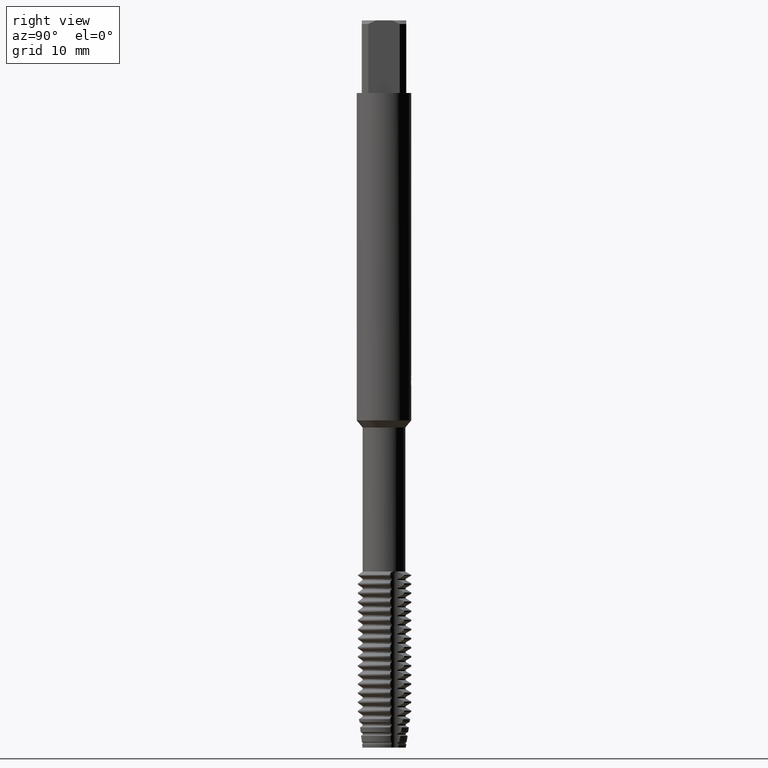
[diagram: clean part render]
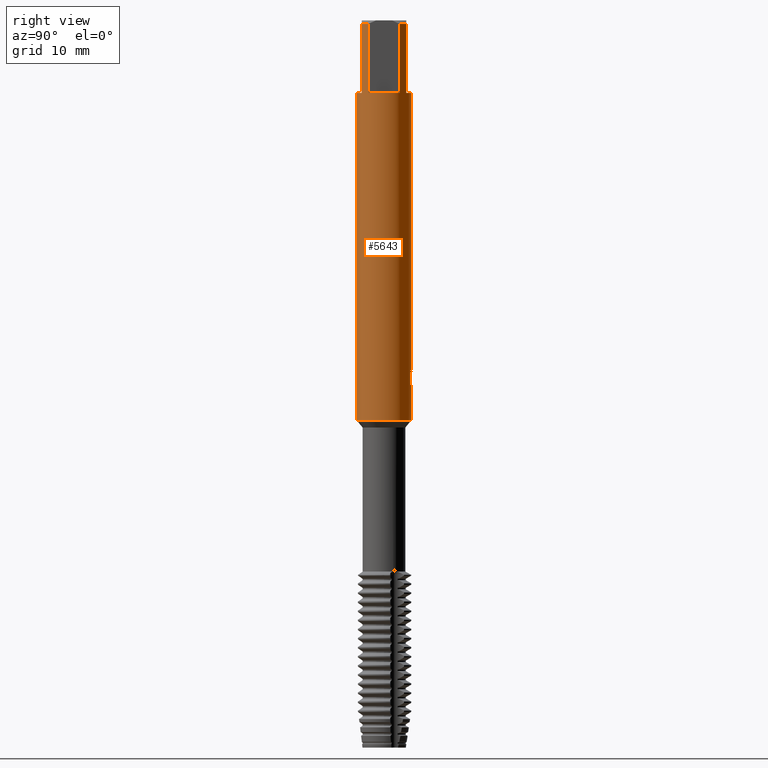
[diagram: same view with one face highlighted and labeled with its STEP entity id]
A machine part, right view. The second image highlights one B-rep face of the part: STEP entity #5643.
In plain terms, the highlighted cylindrical surface (edge-blend (fillet) strip) has radius 3 mm, axis along (-0, -0, 1).
Its self-contained STEP definition (entity closure, byte-faithful):
#2413=EDGE_CURVE('',#4711,#2663,#7181,.T.);
#2647=EDGE_CURVE('',#2835,#6529,#7437,.T.);
#2663=VERTEX_POINT('',#7453);
#2731=EDGE_CURVE('',#3915,#5025,#7527,.T.);
#2835=VERTEX_POINT('',#7644);
#2893=EDGE_CURVE('',#5283,#3915,#7709,.T.);
#2947=EDGE_CURVE('',#4445,#5825,#7770,.T.);
#3297=VERTEX_POINT('',#8155);
#3629=EDGE_CURVE('',#4507,#4875,#8514,.T.);
#3643=EDGE_CURVE('',#4875,#4445,#8528,.T.);
#3915=VERTEX_POINT('',#8822);
#4161=EDGE_CURVE('',#3297,#5447,#9097,.T.);
#4303=EDGE_CURVE('',#6037,#5497,#9253,.T.);
#4403=EDGE_CURVE('',#5447,#5661,#9361,.T.);
#4445=VERTEX_POINT('',#9405);
#4507=VERTEX_POINT('',#9475);
#4711=VERTEX_POINT('',#9699);
#4723=EDGE_CURVE('',#6819,#6037,#9712,.T.);
#4875=VERTEX_POINT('',#9881);
#5021=EDGE_CURVE('',#5661,#5497,#10040,.T.);
#5025=VERTEX_POINT('',#10044);
#5049=VERTEX_POINT('',#10070);
#5283=VERTEX_POINT('',#10326);
#5375=EDGE_CURVE('',#5025,#6529,#10423,.T.);
#5447=VERTEX_POINT('',#10498);
#5497=VERTEX_POINT('',#10552);
#5629=EDGE_CURVE('',#4711,#6819,#10697,.T.);
#5643=ADVANCED_FACE('',(#10712),#10713,.T.);
#5661=VERTEX_POINT('',#10731);
#5725=EDGE_CURVE('',#5049,#6765,#10804,.T.);
#5779=EDGE_CURVE('',#5825,#3297,#10863,.T.);
#5795=EDGE_CURVE('',#6765,#5283,#10882,.T.);
#5809=EDGE_CURVE('',#2835,#5827,#10899,.T.);
#5825=VERTEX_POINT('',#10919);
#5827=VERTEX_POINT('',#10921);
#6037=VERTEX_POINT('',#11148);
#6289=EDGE_CURVE('',#5827,#4507,#11421,.T.);
#6529=VERTEX_POINT('',#11671);
#6765=VERTEX_POINT('',#11928);
#6819=VERTEX_POINT('',#11986);
#6911=EDGE_CURVE('',#2663,#5049,#12085,.T.);
#7181=B_SPLINE_CURVE_WITH_KNOTS('',3,(#12372,#12373,#12374,#12375,#12376,#12377,#12378,#12379,#12380,#12381),.UNSPECIFIED.,.F.,.F.,(4,2,2,2,4),(3.33952438176389,3.71068639626914,4.08193290438485,4.45317941250055,4.82387408804259),.UNSPECIFIED.);
#7437=LINE('',#12804,#12805);
#7453=CARTESIAN_POINT('',(0.174061876221498,2.99494615364722,-40.2998997394137));
#7527=B_SPLINE_CURVE_WITH_KNOTS('',3,(#13006,#13007,#13008,#13009,#13010,#13011),.UNSPECIFIED.,.F.,.F.,(4,2,4),(0.37107796654128,0.74215593308256,1.11285058772105),.UNSPECIFIED.);
#7644=CARTESIAN_POINT('',(-3.67381906146713E-016,3.0,-8.0));
#7709=LINE('',#13316,#13317);
#7770=CIRCLE('',#13410,3.0);
#8155=CARTESIAN_POINT('',(2.45,-1.73132896931808,-0.399999999999999));
#8514=CIRCLE('',#14707,3.0);
#8528=LINE('',#14730,#14731);
#8822=CARTESIAN_POINT('',(0.802326039087946,2.89072186953388,-38.8090290618892));
#9097=CIRCLE('',#15777,3.0);
#9253=LINE('',#16078,#16079);
#9361=LINE('',#16304,#16305);
#9405=CARTESIAN_POINT('',(2.45,1.73132896931808,-8.0));
#9475=CARTESIAN_POINT('',(1.73132896931808,2.45,-0.399999999999999));
#9699=CARTESIAN_POINT('',(1.02911540261998E-015,2.99999999999999,-40.318615216062));
#9712=CIRCLE('',#16884,3.0);
#9881=CARTESIAN_POINT('',(2.45,1.73132896931808,-0.399999999999999));
#10040=CIRCLE('',#17443,3.0);
#10044=CARTESIAN_POINT('',(0.479659035830618,2.96140628913799,-38.5000001661238));
#10070=CARTESIAN_POINT('',(0.524136469055374,2.95385865636902,-39.2919358957655));
#10326=CARTESIAN_POINT('',(0.802326039087947,2.89072186953388,-39.8740994201954));
#10423=B_SPLINE_CURVE_WITH_KNOTS('',3,(#18039,#18040,#18041,#18042,#18043,#18044,#18045,#18046,#18047,#18048,#18049,#18050,#18051,#18052,#18053,#18054,#18055,#18056,#18057,#18058,#18059,#18060,#18061,#18062,#18063,#18064,#18065),.UNSPECIFIED.,.F.,.F.,(4,2,3,2,2,2,2,2,2,2,2,2,4),(-0.325491662881047,-0.162745831440524,0.0,0.162745831440523,0.325491662881047,0.48857928896217,0.651666915043293,0.814181075788761,0.97669523653423,1.13937860219068,1.30206196784712,1.46474533350356,1.62742869916001),.UNSPECIFIED.);
#10498=CARTESIAN_POINT('',(1.73132896931808,-2.45,-0.399999999999999));
#10552=CARTESIAN_POINT('',(3.67381906146713E-016,-3.0,-8.0));
#10697=LINE('',#18573,#18574);
#10712=FACE_OUTER_BOUND('',#18608,.T.);
#10713=CYLINDRICAL_SURFACE('',#18609,3.0);
#10731=CARTESIAN_POINT('',(1.73132896931808,-2.45,-8.0));
#10804=LINE('',#18756,#18757);
#10863=LINE('',#18851,#18852);
#10882=B_SPLINE_CURVE_WITH_KNOTS('',3,(#18882,#18883,#18884,#18885,#18886,#18887),.UNSPECIFIED.,.F.,.F.,(4,2,4),(4.82387363034724,5.19456827247255,5.56564622611886),.UNSPECIFIED.);
#10899=CIRCLE('',#18911,3.0);
#10919=CARTESIAN_POINT('',(2.45,-1.73132896931808,-8.0));
#10921=CARTESIAN_POINT('',(1.73132896931808,2.45,-8.0));
#11148=CARTESIAN_POINT('',(3.67381906146713E-016,-3.0,-44.0));
#11421=LINE('',#19862,#19863);
#11671=CARTESIAN_POINT('',(-1.1292194788514E-014,3.0,-39.1139612870646));
#11928=CARTESIAN_POINT('',(0.524136469055373,2.95385865636902,-40.1552411074919));
#11986=CARTESIAN_POINT('',(0.0,3.0,-44.0));
#12085=ELLIPSE('',#21044,9.14398372010932,3.0);
#12372=CARTESIAN_POINT('',(-0.919321134391312,2.85566956279284,-39.7167514643836));
#12373=CARTESIAN_POINT('',(-0.869340333826626,2.87175979045446,-39.8369526818478));
#12374=CARTESIAN_POINT('',(-0.7943367658771,2.89428729416518,-39.946180348735));
#12375=CARTESIAN_POINT('',(-0.62190649826245,2.93617195165647,-40.1186756687858));
#12376=CARTESIAN_POINT('',(-0.512637169305662,2.95836427575571,-40.1937653794614));
#12377=CARTESIAN_POINT('',(-0.272101743389447,2.99009643596645,-40.2938340938058));
#12378=CARTESIAN_POINT('',(-0.140764146727553,2.99924977776393,-40.3187634001052));
#12379=CARTESIAN_POINT('',(0.106545602280532,3.0006526485303,-40.3187634001052));
#12380=CARTESIAN_POINT('',(0.237797441372153,2.9930118737714,-40.2939004779081));
#12381=CARTESIAN_POINT('',(0.358042092904169,2.97855768111158,-40.2439214764374));
#12804=CARTESIAN_POINT('',(-3.67381906146713E-016,3.0,-22.2));
#12805=VECTOR('',#21784,1.0);
#13006=CARTESIAN_POINT('',(0.885267806757017,2.86640906193091,-38.9663327006887));
#13007=CARTESIAN_POINT('',(0.835257364243698,2.88185438127597,-38.8460769466886));
#13008=CARTESIAN_POINT('',(0.760180789012212,2.90344206972957,-38.7367632829805));
#13009=CARTESIAN_POINT('',(0.587589839319659,2.9432248732203,-38.5642350710499));
#13010=CARTESIAN_POINT('',(0.478286561023013,2.96410351776529,-38.4891862553258));
#13011=CARTESIAN_POINT('',(0.358041915481556,2.97855770243893,-38.4392072565724));
#13316=CARTESIAN_POINT('',(0.802326039087947,2.89072186953388,-39.3415642410423));
#13317=VECTOR('',#22087,1.0);
#13410=AXIS2_PLACEMENT_3D('',#22164,#22165,#22166);
#14707=AXIS2_PLACEMENT_3D('',#22951,#22952,#22953);
#14730=CARTESIAN_POINT('',(2.45,1.73132896931808,-4.2));
#14731=VECTOR('',#22954,1.0);
#15777=AXIS2_PLACEMENT_3D('',#23589,#23590,#23591);
#16078=CARTESIAN_POINT('',(3.67381906146713E-016,-3.0,-22.2));
#16079=VECTOR('',#23769,1.0);
#16304=CARTESIAN_POINT('',(1.73132896931808,-2.45,-4.2));
#16305=VECTOR('',#23862,1.0);
#16884=AXIS2_PLACEMENT_3D('',#24572,#24573,#24574);
#17443=AXIS2_PLACEMENT_3D('',#24931,#24932,#24933);
#18039=CARTESIAN_POINT('',(0.399073662054701,2.9733382270193,-38.3881578074487));
#18040=CARTESIAN_POINT('',(0.437241118172757,2.96821549111729,-38.4263666363942));
#18041=CARTESIAN_POINT('',(0.470378499662075,2.96297848846858,-38.4747661621587));
#18042=CARTESIAN_POINT('',(0.514381160077739,2.95565719997762,-38.5809468503984));
#18043=CARTESIAN_POINT('',(0.525240588713139,2.95366252709552,-38.6387365970719));
#18044=CARTESIAN_POINT('',(0.525240588713139,2.95366252709552,-38.6929852075521));
#18045=CARTESIAN_POINT('',(0.525240588713139,2.95366252709552,-38.7472338180322));
#18046=CARTESIAN_POINT('',(0.514381160077739,2.95565719997762,-38.8050235647058));
#18047=CARTESIAN_POINT('',(0.470378499662075,2.96297848846858,-38.9112042529454));
#18048=CARTESIAN_POINT('',(0.437241118172758,2.96821549111729,-38.95960377871));
#18049=CARTESIAN_POINT('',(0.360826047619651,2.97847172156046,-39.0361016818081));
#18050=CARTESIAN_POINT('',(0.312384718269332,2.98416839722865,-39.0693131706837));
#18051=CARTESIAN_POINT('',(0.206102293488516,2.99338722515065,-39.1134202069633));
#18052=CARTESIAN_POINT('',(0.148251731896476,2.99682777449178,-39.1243099616648));
#18053=CARTESIAN_POINT('',(0.0397709987252813,3.00022545933147,-39.1243099616648));
#18054=CARTESIAN_POINT('',(-0.0179912012444218,3.00041652694693,-39.1134886213906));
#18055=CARTESIAN_POINT('',(-0.124225517538505,2.99789776999505,-39.0694963705132));
#18056=CARTESIAN_POINT('',(-0.172700489972417,2.99527068292401,-39.0363276588386));
#18057=CARTESIAN_POINT('',(-0.249281669772502,2.9898718432363,-38.9597995158294));
#18058=CARTESIAN_POINT('',(-0.282493736677514,2.98675204362553,-38.9113123678398));
#18059=CARTESIAN_POINT('',(-0.326558647658045,2.98225584656319,-38.8050214521099));
#18060=CARTESIAN_POINT('',(-0.337408919512348,2.9809654847102,-38.7472129961042));
#18061=CARTESIAN_POINT('',(-0.337408919512347,2.9809654847102,-38.6387574189999));
#18062=CARTESIAN_POINT('',(-0.326558647658045,2.98225584656319,-38.5809489629942));
#18063=CARTESIAN_POINT('',(-0.282493736677516,2.98675204362553,-38.4746580472644));
#18064=CARTESIAN_POINT('',(-0.2492816697725,2.9898718432363,-38.4261708992748));
#18065=CARTESIAN_POINT('',(-0.210971156732432,2.9925726676268,-38.387886918428));
#18573=CARTESIAN_POINT('',(-3.67381906146713E-016,3.0,-22.2));
#18574=VECTOR('',#25595,1.0);
#18608=EDGE_LOOP('',(#25611,#25612,#25613,#25614,#25615,#25616,#25617,#25618,#25619,#25620,#25621,#25622,#25623,#25624,#25625,#25626,#25627,#25628,#25629,#25630));
#18609=AXIS2_PLACEMENT_3D('',#25631,#25632,#25633);
#18756=CARTESIAN_POINT('',(0.524136469055374,2.95385865636902,-39.7235885016287));
#18757=VECTOR('',#25735,1.0);
#18851=CARTESIAN_POINT('',(2.45,-1.73132896931808,-4.2));
#18852=VECTOR('',#25961,1.0);
#18882=CARTESIAN_POINT('',(0.358041928866452,2.97855770082998,-40.2439212158429));
#18883=CARTESIAN_POINT('',(0.478286570305828,2.96410351610127,-40.1939422187729));
#18884=CARTESIAN_POINT('',(0.587589844864579,2.94322487202299,-40.1188934055854));
#18885=CARTESIAN_POINT('',(0.760180788580036,2.9034420697483,-39.946365199533));
#18886=CARTESIAN_POINT('',(0.835257361192053,2.88185438212673,-39.8370515395987));
#18887=CARTESIAN_POINT('',(0.885267801957581,2.86640906341317,-39.7167957897556));
#18911=AXIS2_PLACEMENT_3D('',#26020,#26021,#26022);
#19862=CARTESIAN_POINT('',(1.73132896931808,2.45,-4.2));
#19863=VECTOR('',#26548,1.0);
#21044=AXIS2_PLACEMENT_3D('',#27179,#27180,#27181);
#21784=DIRECTION('',(0.0,0.0,-1.0));
#22087=DIRECTION('',(-0.0,-0.0,1.0));
#22164=CARTESIAN_POINT('',(0.0,0.0,-8.0));
#22165=DIRECTION('',(0.0,0.0,-1.0));
#22166=DIRECTION('',(0.0,1.0,0.0));
#22951=CARTESIAN_POINT('',(0.0,0.0,-0.399999999999999));
#22952=DIRECTION('',(0.0,0.0,-1.0));
#22953=DIRECTION('',(0.0,1.0,0.0));
#22954=DIRECTION('',(0.0,0.0,-1.0));
#23589=CARTESIAN_POINT('',(0.0,0.0,-0.399999999999999));
#23590=DIRECTION('',(0.0,0.0,-1.0));
#23591=DIRECTION('',(0.0,1.0,0.0));
#23769=DIRECTION('',(-0.0,-0.0,1.0));
#23862=DIRECTION('',(0.0,0.0,-1.0));
#24572=CARTESIAN_POINT('',(0.0,0.0,-44.0));
#24573=DIRECTION('',(0.0,0.0,-1.0));
#24574=DIRECTION('',(0.0,1.0,0.0));
#24931=CARTESIAN_POINT('',(0.0,0.0,-8.0));
#24932=DIRECTION('',(0.0,0.0,-1.0));
#24933=DIRECTION('',(0.0,1.0,0.0));
#25595=DIRECTION('',(0.0,0.0,-1.0));
#25611=ORIENTED_EDGE('',*,*,#2647,.F.);
#25612=ORIENTED_EDGE('',*,*,#5809,.T.);
#25613=ORIENTED_EDGE('',*,*,#6289,.T.);
#25614=ORIENTED_EDGE('',*,*,#3629,.T.);
#25615=ORIENTED_EDGE('',*,*,#3643,.T.);
#25616=ORIENTED_EDGE('',*,*,#2947,.T.);
#25617=ORIENTED_EDGE('',*,*,#5779,.T.);
#25618=ORIENTED_EDGE('',*,*,#4161,.T.);
#25619=ORIENTED_EDGE('',*,*,#4403,.T.);
#25620=ORIENTED_EDGE('',*,*,#5021,.T.);
#25621=ORIENTED_EDGE('',*,*,#4303,.F.);
#25622=ORIENTED_EDGE('',*,*,#4723,.F.);
#25623=ORIENTED_EDGE('',*,*,#5629,.F.);
#25624=ORIENTED_EDGE('',*,*,#2413,.T.);
#25625=ORIENTED_EDGE('',*,*,#6911,.T.);
#25626=ORIENTED_EDGE('',*,*,#5725,.T.);
#25627=ORIENTED_EDGE('',*,*,#5795,.T.);
#25628=ORIENTED_EDGE('',*,*,#2893,.T.);
#25629=ORIENTED_EDGE('',*,*,#2731,.T.);
#25630=ORIENTED_EDGE('',*,*,#5375,.T.);
#25631=CARTESIAN_POINT('',(0.0,0.0,-22.2));
#25632=DIRECTION('',(-0.0,-0.0,1.0));
#25633=DIRECTION('',(0.0,1.0,0.0));
#25735=DIRECTION('',(0.0,0.0,-1.0));
#25961=DIRECTION('',(-0.0,-0.0,1.0));
#26020=CARTESIAN_POINT('',(0.0,0.0,-8.0));
#26021=DIRECTION('',(0.0,0.0,-1.0));
#26022=DIRECTION('',(0.0,1.0,0.0));
#26548=DIRECTION('',(-0.0,-0.0,1.0));
#27179=CARTESIAN_POINT('',(0.0,0.0,-40.8010731503961));
#27180=DIRECTION('',(0.944648353914092,0.0,-0.328084573619969));
#27181=DIRECTION('',(0.328084573619969,-0.0,0.944648353914092));